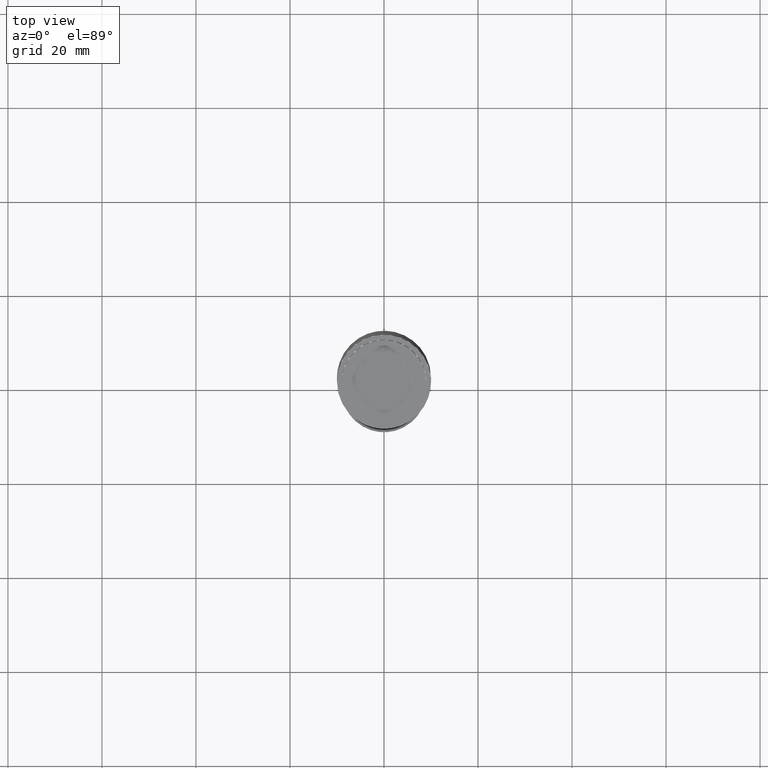
[diagram: clean part render]
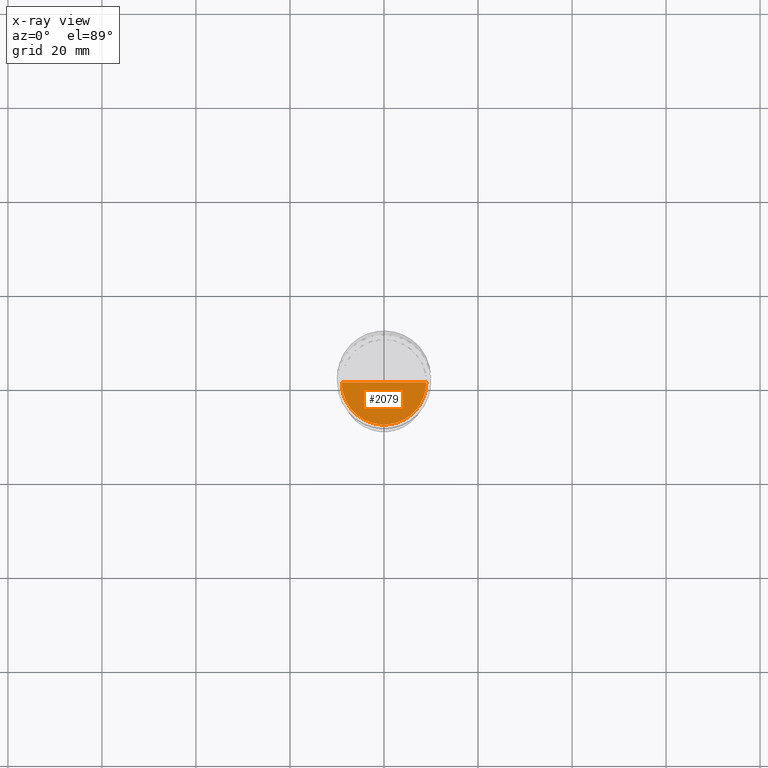
[diagram: x-ray — body ghosted, one internal face saturated and labeled with its STEP entity id]
A machine part, top view, then the same camera in x-ray: the body is ghosted and one INTERNAL B-rep face — a face not visible from any outside direction — is saturated and labeled: STEP entity #2079.
In plain terms, the highlighted face is a freeform B-spline surface patch.
Its self-contained STEP definition (entity closure, byte-faithful):
#1918=CARTESIAN_POINT('',(9.0,0.0,-7.0));
#1922=CARTESIAN_POINT('',(-9.0,0.0,-7.0));
#1923=CARTESIAN_POINT('',(0.0,0.0,-7.0));
#1927=CARTESIAN_POINT('',(-9.0,-9.0,-7.0));
#1928=CARTESIAN_POINT('',(0.0,-9.0,-7.0));
#1929=CARTESIAN_POINT('',(9.0,-9.0,-7.0));
#2064=(
BOUNDED_SURFACE()
B_SPLINE_SURFACE(1,2,(
(#1922,#1927,#1928,#1929,#1918),
(#1923,#1923,#1923,#1923,#1923)
), .UNSPECIFIED.,.F.,.F.,.F.)
B_SPLINE_SURFACE_WITH_KNOTS((2,2),(3,2,3),(
0.0,1.0),(
0.0,0.5,1.0), .UNSPECIFIED.)
GEOMETRIC_REPRESENTATION_ITEM()
RATIONAL_B_SPLINE_SURFACE(((1.0,0.707106781187,1.0,0.707106781187,1.0),
(1.0,0.707106781187,1.0,0.707106781187,1.0)
))
REPRESENTATION_ITEM('')
SURFACE()
);
#2065=(
BOUNDED_CURVE()
B_SPLINE_CURVE(2,(#1918,#1929,#1928,#1927,#1922),.UNSPECIFIED.,.F.,.F.)
B_SPLINE_CURVE_WITH_KNOTS((3,2,3),
(0.0,0.5,1.0),.UNSPECIFIED.)
CURVE()
GEOMETRIC_REPRESENTATION_ITEM()
RATIONAL_B_SPLINE_CURVE((1.0,0.707106781187,1.0,0.707106781187,1.0))
REPRESENTATION_ITEM('')
);
#2066=(
BOUNDED_CURVE()
B_SPLINE_CURVE(1,(#1922,#1923),.UNSPECIFIED.,.F.,.F.)
B_SPLINE_CURVE_WITH_KNOTS((2,2),
(0.0,1.0),.UNSPECIFIED.)
CURVE()
GEOMETRIC_REPRESENTATION_ITEM()
RATIONAL_B_SPLINE_CURVE((1.0,1.0))
REPRESENTATION_ITEM('')
);
#2067=(
BOUNDED_CURVE()
B_SPLINE_CURVE(1,(#1923,#1918),.UNSPECIFIED.,.F.,.F.)
B_SPLINE_CURVE_WITH_KNOTS((2,2),
(0.0,1.0),.UNSPECIFIED.)
CURVE()
GEOMETRIC_REPRESENTATION_ITEM()
RATIONAL_B_SPLINE_CURVE((1.0,1.0))
REPRESENTATION_ITEM('')
);
#2068=VERTEX_POINT('',#1918);
#2069=VERTEX_POINT('',#1922);
#2070=VERTEX_POINT('',#1923);
#2071=EDGE_CURVE('',#2068,#2069,#2065,.T.);
#2072=EDGE_CURVE('',#2069,#2070,#2066,.T.);
#2073=EDGE_CURVE('',#2070,#2068,#2067,.T.);
#2074=ORIENTED_EDGE('',*,*,#2071,.T.);
#2075=ORIENTED_EDGE('',*,*,#2072,.T.);
#2076=ORIENTED_EDGE('',*,*,#2073,.T.);
#2077=EDGE_LOOP('',(#2074,#2075,#2076));
#2078=FACE_OUTER_BOUND('',#2077,.T.);
#2079=ADVANCED_FACE('',(#2078),#2064,.T.);